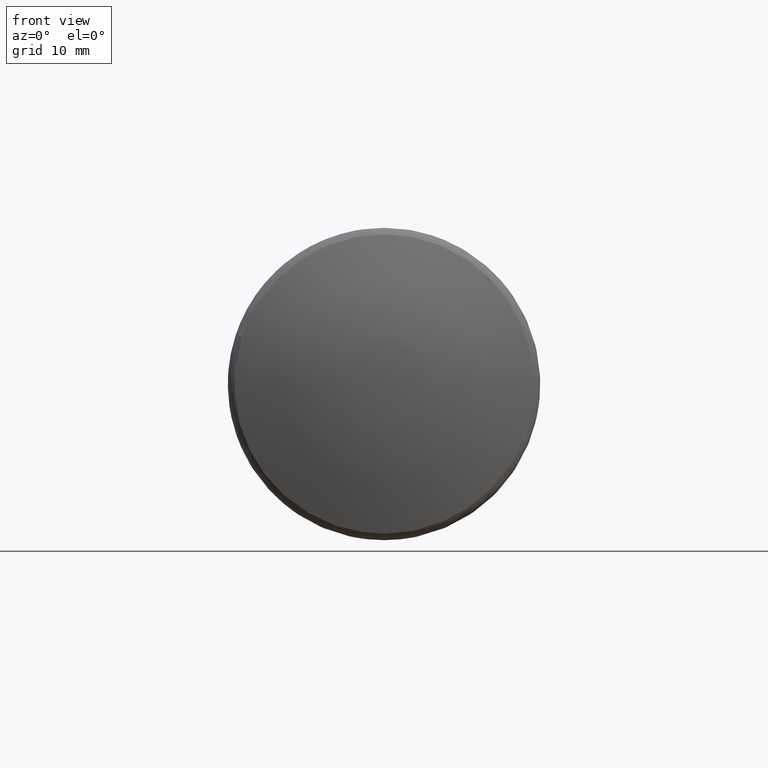
[diagram: clean part render]
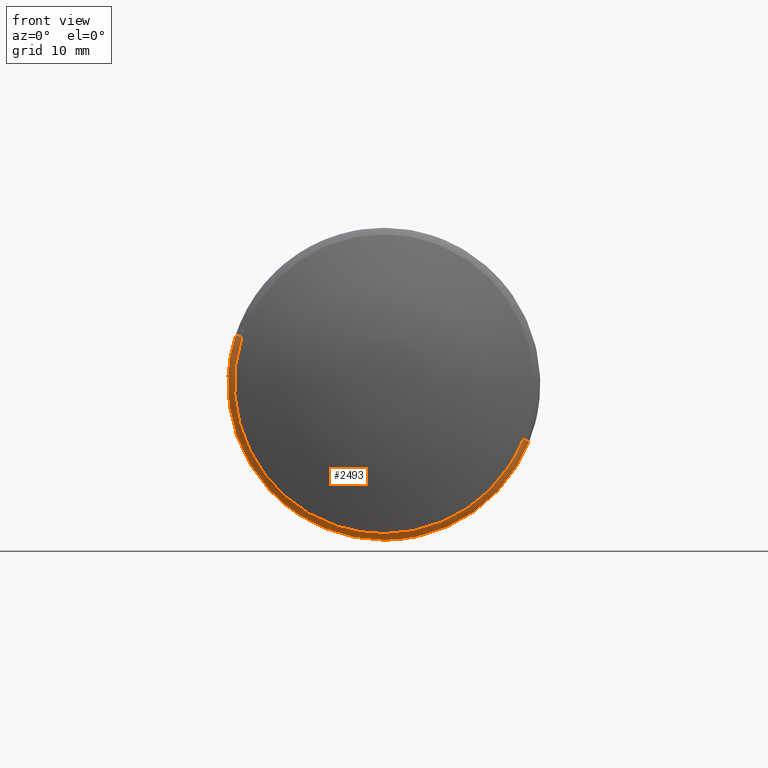
[diagram: same view with one face highlighted and labeled with its STEP entity id]
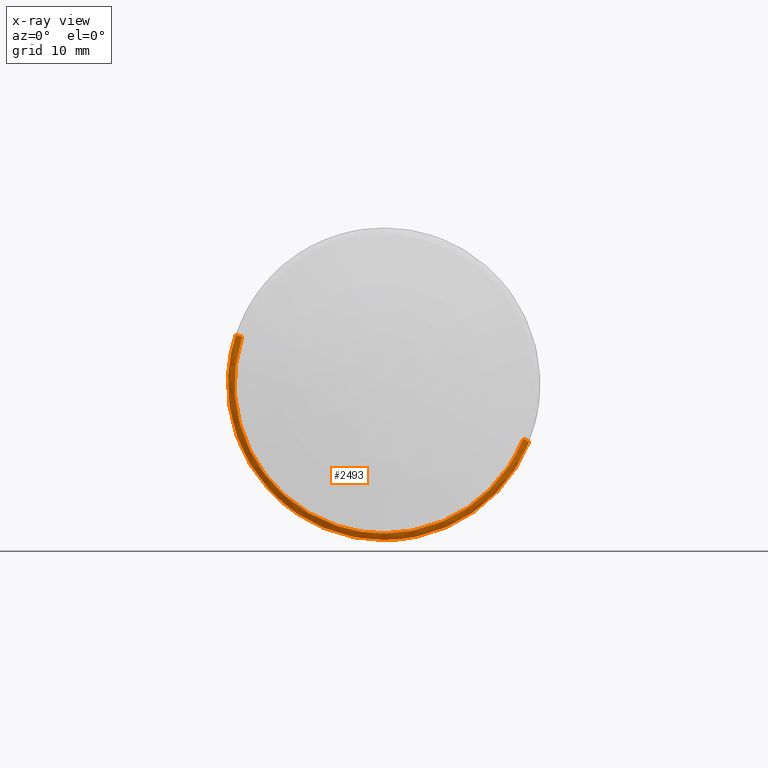
[diagram: x-ray of the same camera — body ghosted, the highlighted face saturated]
A machine part, front view. The second image highlights one B-rep face of the part: STEP entity #2493.
The next image is the same camera in x-ray: the body ghosted, the highlighted face saturated — about 0% of this face is hidden behind the body in this view.
In plain terms, the highlighted face is a freeform B-spline surface patch.
Its self-contained STEP definition (entity closure, byte-faithful):
#1612=CARTESIAN_POINT('',(-14.327043465396320,-13.946647288321740,-5.521868290275296));
#1613=VERTEX_POINT('',#1612);
#1629=CARTESIAN_POINT('',(-14.327043465311441,0.0,-15.0));
#1630=VERTEX_POINT('',#1629);
#1631=CARTESIAN_POINT('',(-14.327043465396327,-13.946647288321737,-5.521868290275297));
#1632=CARTESIAN_POINT('',(-14.327043465311442,-10.193989473359830,-15.000000000000002));
#1633=CARTESIAN_POINT('',(-14.327043465311441,0.0,-15.0));
#1641=(BOUNDED_CURVE()B_SPLINE_CURVE(2,(#1631,#1632,#1633),.UNSPECIFIED.,.F.,.U.)B_SPLINE_CURVE_WITH_KNOTS((3,3),(0.812505050763819,1.0),.UNSPECIFIED.)CURVE()GEOMETRIC_REPRESENTATION_ITEM()RATIONAL_B_SPLINE_CURVE((0.890159125846163,0.780336003227800,1.0))REPRESENTATION_ITEM(''));
#1642=EDGE_CURVE('',#1613,#1630,#1641,.T.);
#1644=CARTESIAN_POINT('',(-14.327043465311441,11.059160102392720,-10.133853059406620));
#1645=VERTEX_POINT('',#1644);
#1646=CARTESIAN_POINT('',(-14.327043465311441,0.0,-15.0));
#1647=CARTESIAN_POINT('',(-14.327043465311444,6.600158052141305,-15.000000000000002));
#1648=CARTESIAN_POINT('',(-14.327043465311441,11.059160102392719,-10.133853059406624));
#1656=(BOUNDED_CURVE()B_SPLINE_CURVE(2,(#1646,#1647,#1648),.UNSPECIFIED.,.F.,.U.)B_SPLINE_CURVE_WITH_KNOTS((3,3),(0.0,0.131584792412767),.UNSPECIFIED.)CURVE()GEOMETRIC_REPRESENTATION_ITEM()RATIONAL_B_SPLINE_CURVE((1.0,0.845838826413299,0.853959781022715))REPRESENTATION_ITEM(''));
#1657=EDGE_CURVE('',#1630,#1645,#1656,.T.);
#1763=CARTESIAN_POINT('',(-14.327043465403140,14.239627476020310,4.715189216157445));
#1764=VERTEX_POINT('',#1763);
#1765=CARTESIAN_POINT('',(-14.327043465311441,11.059160102392719,-10.133853059406624));
#1766=CARTESIAN_POINT('',(-14.327043465311444,15.000000000000007,-5.833180892182860));
#1767=CARTESIAN_POINT('',(-14.327043465311441,15.0,0.0));
#1768=CARTESIAN_POINT('',(-14.327043465311444,15.000000000000005,2.418903534265911));
#1769=CARTESIAN_POINT('',(-14.327043465403140,14.239627476020312,4.715189216157445));
#1777=(BOUNDED_CURVE()B_SPLINE_CURVE(2,(#1765,#1766,#1767,#1768,#1769),.UNSPECIFIED.,.F.,.U.)B_SPLINE_CURVE_WITH_KNOTS((3,2,3),(0.131584792412767,0.250000000000000,0.303444232663815),.UNSPECIFIED.)CURVE()GEOMETRIC_REPRESENTATION_ITEM()RATIONAL_B_SPLINE_CURVE((0.853959781022715,0.861267954773248,1.0,0.937386186672320,0.901543151004266))REPRESENTATION_ITEM(''));
#1778=EDGE_CURVE('',#1645,#1764,#1777,.T.);
#2369=CARTESIAN_POINT('',(-15.256702503382090,13.640064215033600,4.516654933798974));
#2370=VERTEX_POINT('',#2369);
#2384=CARTESIAN_POINT('',(-15.256702503187110,-13.359420035667871,-5.289368573467486));
#2385=VERTEX_POINT('',#2384);
#2401=CARTESIAN_POINT('',(-15.256702503187118,-13.359420035667863,-5.289368573467486));
#2402=CARTESIAN_POINT('',(-15.006409683125858,-13.946647288216560,-5.521868290227714));
#2403=CARTESIAN_POINT('',(-14.327043465396331,-13.946647288321735,-5.521868290275296));
#2411=(BOUNDED_CURVE()B_SPLINE_CURVE(2,(#2401,#2402,#2403),.UNSPECIFIED.,.F.,.U.)B_SPLINE_CURVE_WITH_KNOTS((3,3),(-1.675526648144326,-0.339037320921394),.UNSPECIFIED.)CURVE()GEOMETRIC_REPRESENTATION_ITEM()RATIONAL_B_SPLINE_CURVE((0.904968416766681,0.747154401089538,0.901566036640341))REPRESENTATION_ITEM(''));
#2412=EDGE_CURVE('',#2385,#1613,#2411,.T.);
#2417=CARTESIAN_POINT('',(-15.256702503382089,13.640064215033602,4.516654933798974));
#2418=CARTESIAN_POINT('',(-15.006409683903012,14.239627475902100,4.715189216118147));
#2419=CARTESIAN_POINT('',(-14.327043465403136,14.239627476020305,4.715189216157445));
#2427=(BOUNDED_CURVE()B_SPLINE_CURVE(2,(#2417,#2418,#2419),.UNSPECIFIED.,.F.,.U.)B_SPLINE_CURVE_WITH_KNOTS((3,3),(-1.675526649405372,-0.339037320937570),.UNSPECIFIED.)CURVE()GEOMETRIC_REPRESENTATION_ITEM()RATIONAL_B_SPLINE_CURVE((0.884611877216924,0.730347761014081,0.881286030612152))REPRESENTATION_ITEM(''));
#2428=EDGE_CURVE('',#2370,#1764,#2427,.T.);
#2433=CARTESIAN_POINT('',(-15.275719198547586,-13.310913043381374,-5.270163296545596));
#2434=CARTESIAN_POINT('',(-15.275719198547590,-8.040749746835777,-18.581076339926966));
#2435=CARTESIAN_POINT('',(-15.275719198547586,5.270163296545595,-13.310913043381374));
#2436=CARTESIAN_POINT('',(-15.275719198547586,17.840369817282902,-8.334016205449723));
#2437=CARTESIAN_POINT('',(-15.275719198547595,13.590538226498158,4.500255318846810));
#2438=CARTESIAN_POINT('',(-15.034110626661432,-13.984785217002278,-5.536968164431514));
#2439=CARTESIAN_POINT('',(-15.034110626661423,-8.447817052570766,-19.521753381433797));
#2440=CARTESIAN_POINT('',(-15.034110626661432,5.536968164431513,-13.984785217002278));
#2441=CARTESIAN_POINT('',(-15.034110626661425,18.743548190381137,-8.755930284300293));
#2442=CARTESIAN_POINT('',(-15.034110626661422,14.278566576283081,4.728083178864892));
#2443=CARTESIAN_POINT('',(-14.271319138471748,-13.945202594684160,-5.521296295594107));
#2444=CARTESIAN_POINT('',(-14.271319138471748,-8.423906299090053,-19.466498890278270));
#2445=CARTESIAN_POINT('',(-14.271319138471748,5.521296295594106,-13.945202594684160));
#2446=CARTESIAN_POINT('',(-14.271319138471750,18.690496335997324,-8.731147445228450));
#2447=CARTESIAN_POINT('',(-14.271319138471744,14.238152433394003,4.714700783078781));
#2455=(BOUNDED_SURFACE()B_SPLINE_SURFACE(2,2,((#2433,#2438,#2443),(#2434,#2439,#2444),(#2435,#2440,#2445),(#2436,#2441,#2446),(#2437,#2442,#2447)),.UNSPECIFIED.,.F.,.F.,.U.)B_SPLINE_SURFACE_WITH_KNOTS((3,2,3),(3,3),(0.0,24.850239309893229,48.706469047390733),(0.0,1.353108793930158),.UNSPECIFIED.)GEOMETRIC_REPRESENTATION_ITEM()RATIONAL_B_SPLINE_SURFACE(((0.921513161804328,0.730779672986403,0.917770750432629),(0.651608205664496,0.516739262321973,0.648961921205579),(0.921513161804328,0.730779672986403,0.917770750432629),(0.662404403910090,0.525300878748551,0.659714274374661),(0.900784461172789,0.714341369447375,0.897126232347992)))REPRESENTATION_ITEM('')SURFACE());
#2456=CARTESIAN_POINT('',(-15.256702503872249,0.0,-14.368421052631540));
#2457=VERTEX_POINT('',#2456);
#2458=CARTESIAN_POINT('',(-15.256702503382087,13.640064215033599,4.516654933798974));
#2459=CARTESIAN_POINT('',(-15.256702503872249,14.368421052631543,2.317054964443454));
#2460=CARTESIAN_POINT('',(-15.256702503872249,14.368421052631540,0.0));
#2461=CARTESIAN_POINT('',(-15.256702503872257,14.368421052631538,-14.368421052631538));
#2462=CARTESIAN_POINT('',(-15.256702503872249,0.0,-14.368421052631540));
#2470=(BOUNDED_CURVE()B_SPLINE_CURVE(2,(#2458,#2459,#2460,#2461,#2462),.UNSPECIFIED.,.F.,.U.)B_SPLINE_CURVE_WITH_KNOTS((3,2,3),(0.696555767335290,0.750000000000000,1.0),.UNSPECIFIED.)CURVE()GEOMETRIC_REPRESENTATION_ITEM()RATIONAL_B_SPLINE_CURVE((0.901543151003066,0.937386186671272,1.0,0.707106781186547,1.0))REPRESENTATION_ITEM(''));
#2471=EDGE_CURVE('',#2370,#2457,#2470,.T.);
#2472=ORIENTED_EDGE('',*,*,#2471,.F.);
#2473=ORIENTED_EDGE('',*,*,#2428,.T.);
#2474=ORIENTED_EDGE('',*,*,#1778,.F.);
#2475=ORIENTED_EDGE('',*,*,#1657,.F.);
#2476=ORIENTED_EDGE('',*,*,#1642,.F.);
#2477=ORIENTED_EDGE('',*,*,#2412,.F.);
#2478=CARTESIAN_POINT('',(-15.256702503872249,0.0,-14.368421052631540));
#2479=CARTESIAN_POINT('',(-15.256702503872253,-9.764768863890698,-14.368421052631543));
#2480=CARTESIAN_POINT('',(-15.256702503187109,-13.359420035667869,-5.289368573467486));
#2488=(BOUNDED_CURVE()B_SPLINE_CURVE(2,(#2478,#2479,#2480),.UNSPECIFIED.,.F.,.U.)B_SPLINE_CURVE_WITH_KNOTS((3,3),(0.0,0.187494949235215),.UNSPECIFIED.)CURVE()GEOMETRIC_REPRESENTATION_ITEM()RATIONAL_B_SPLINE_CURVE((1.0,0.780336003228932,0.890159125845031))REPRESENTATION_ITEM(''));
#2489=EDGE_CURVE('',#2457,#2385,#2488,.T.);
#2490=ORIENTED_EDGE('',*,*,#2489,.F.);
#2491=EDGE_LOOP('',(#2472,#2473,#2474,#2475,#2476,#2477,#2490));
#2492=FACE_OUTER_BOUND('',#2491,.T.);
#2493=ADVANCED_FACE('',(#2492),#2455,.T.);